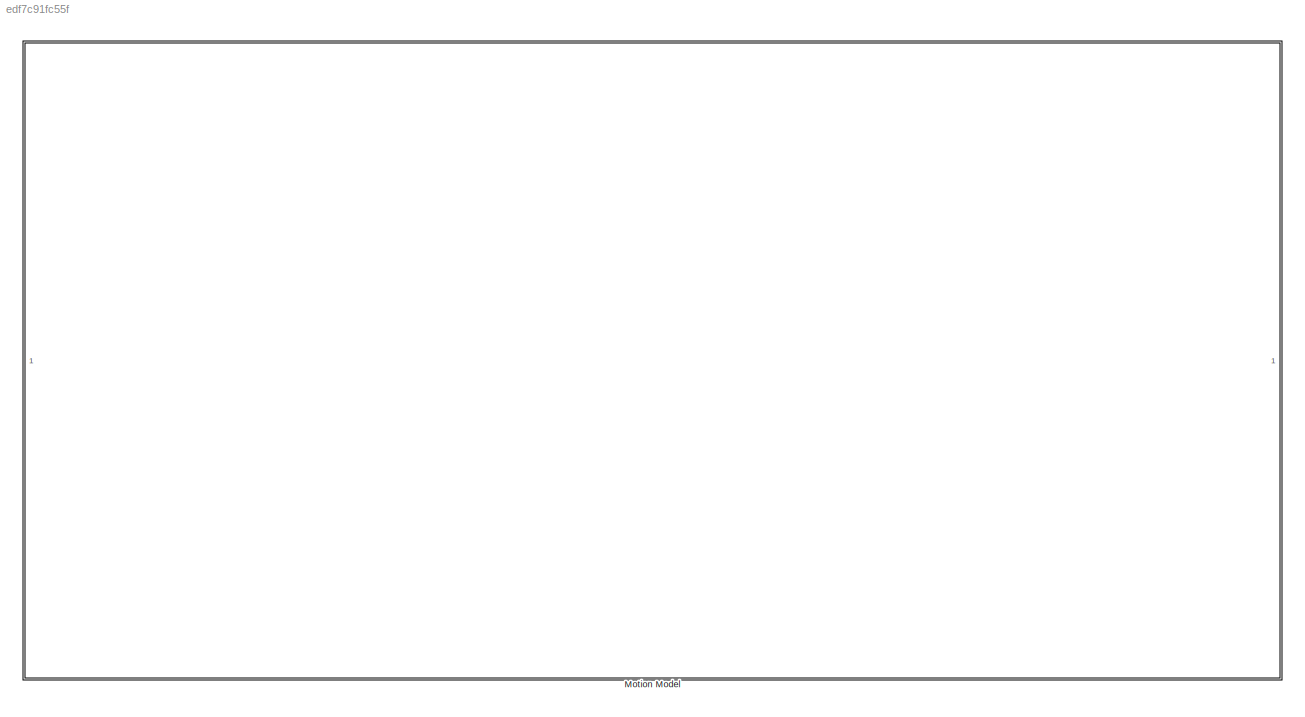
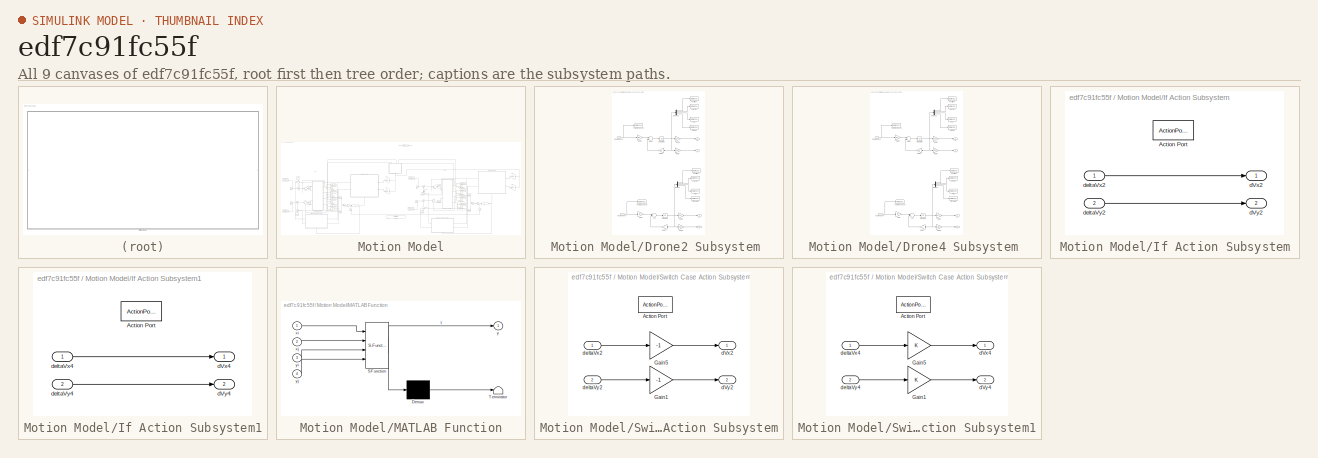
[diagram: thumbnail index - all 9 canvases of the model, root first then tree order]
MODEL slx_edf7c91fc55f
KIND model
CONFIG AbsTol = auto
CONFIG EnableMultiTasking = off
CONFIG FixedStep = auto
CONFIG MaxStep = auto
CONFIG MinStep = auto
CONFIG RelTol = 1e-3
CONFIG SampleTimeConstraint = Unconstrained
CONFIG Solver = VariableStepAuto
CONFIG SolverName = VariableStepAuto
CONFIG StartTime = tStart 
CONFIG StopTime = tFinal
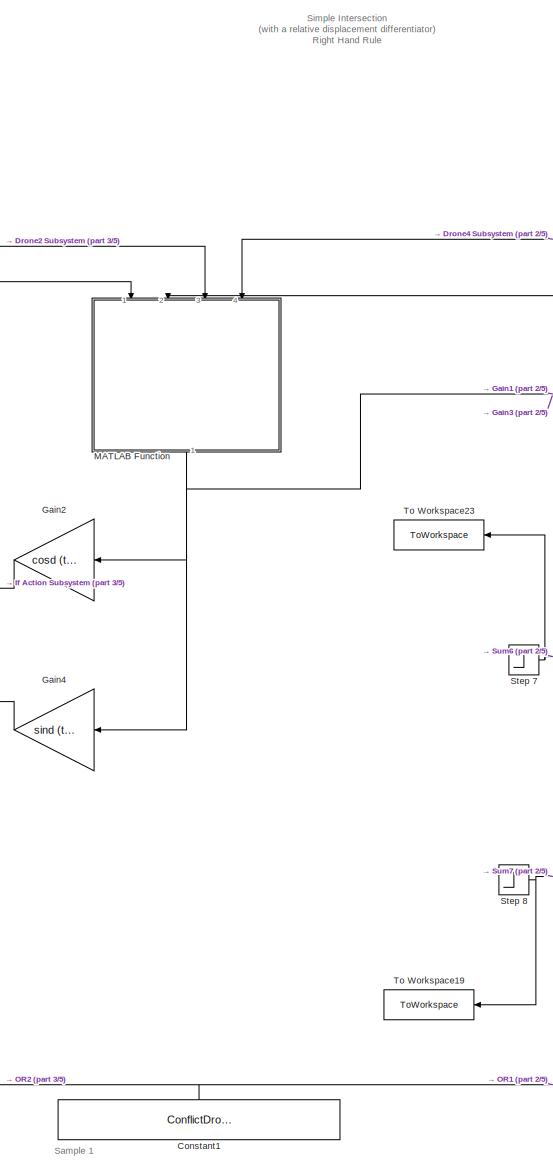
[diagram: Motion Model - part 1/5, center side, full height]
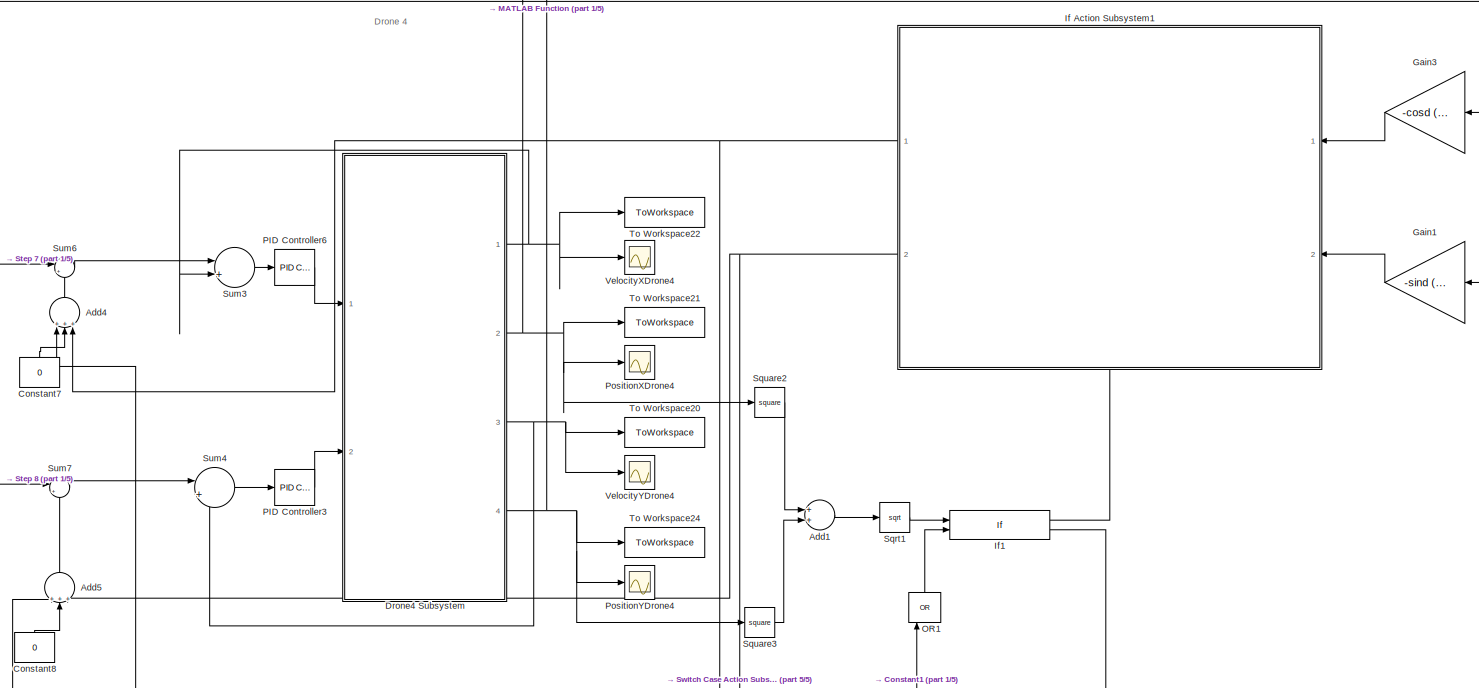
[diagram: Motion Model - part 2/5, middle right region]
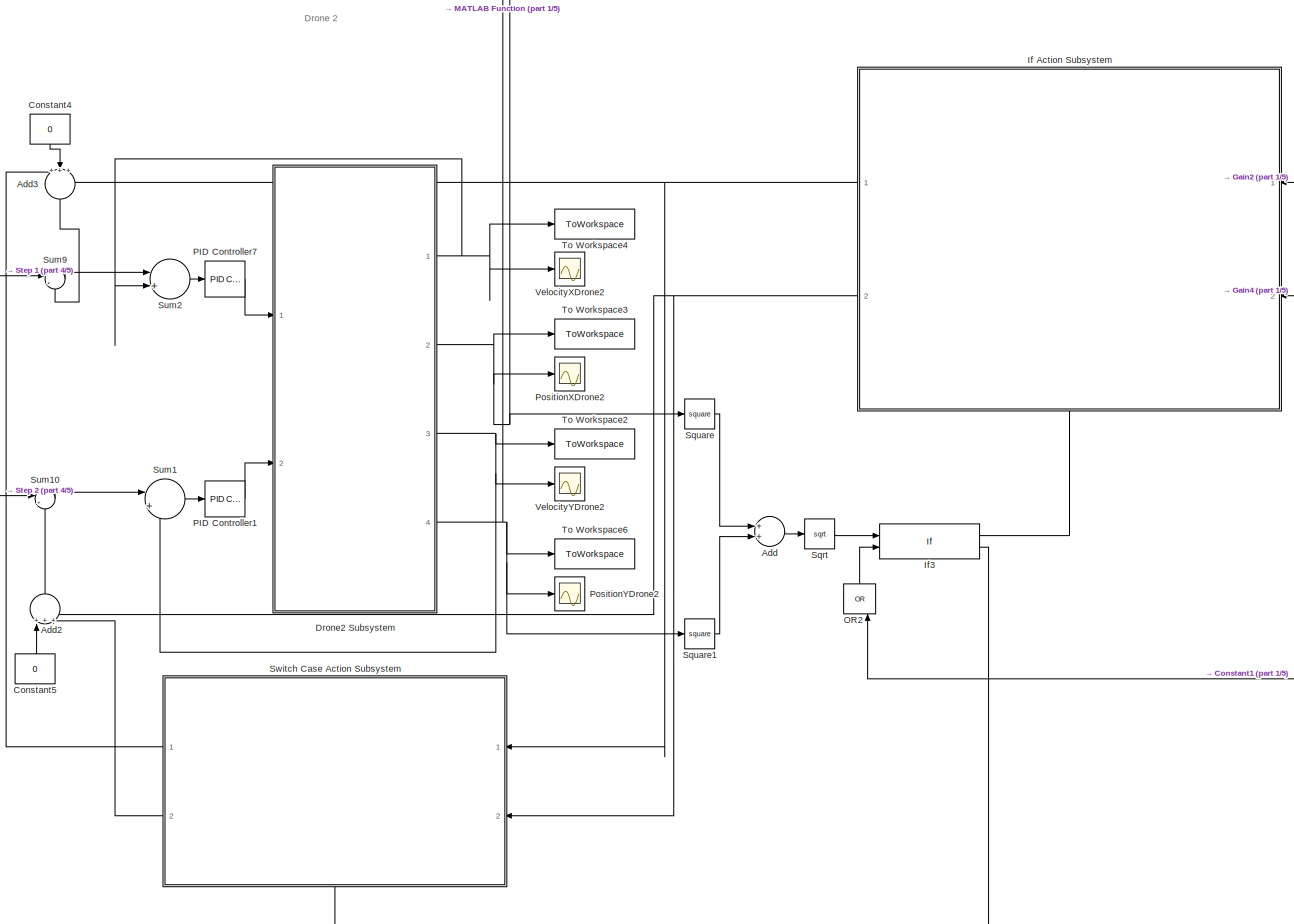
[diagram: Motion Model - part 3/5, middle left region]
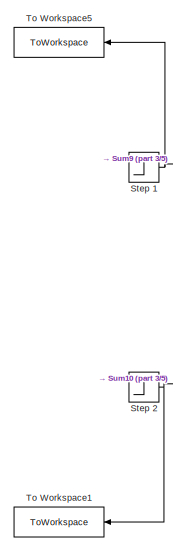
[diagram: Motion Model - part 4/5, middle left region]
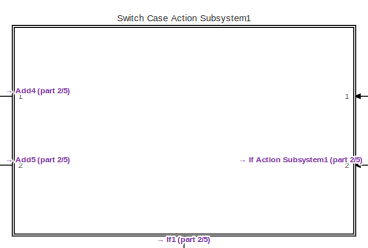
[diagram: Motion Model - part 5/5, bottom right region]
BLOCK [SubSystem] Motion Model
  Ports = []
  RequestExecContextInheritance = off
BLOCK [Sum] Motion Model/Add
  InputSameDT = off
  OutDataTypeStr = Inherit: Inherit via internal rule
  Ports = [2, 1]
  SaturateOnIntegerOverflow = off
BLOCK [Sum] Motion Model/Add1
  InputSameDT = off
  OutDataTypeStr = Inherit: Inherit via internal rule
  Ports = [2, 1]
  SaturateOnIntegerOverflow = off
BLOCK [Sum] Motion Model/Add2
  InputSameDT = off
  Inputs = +++
  OutDataTypeStr = Inherit: Inherit via internal rule
  Ports = [3, 1]
  SaturateOnIntegerOverflow = off
BLOCK [Sum] Motion Model/Add3
  InputSameDT = off
  Inputs = +++
  OutDataTypeStr = Inherit: Inherit via internal rule
  Ports = [3, 1]
  SaturateOnIntegerOverflow = off
BLOCK [Sum] Motion Model/Add4
  InputSameDT = off
  Inputs = +++
  OutDataTypeStr = Inherit: Inherit via internal rule
  Ports = [3, 1]
  SaturateOnIntegerOverflow = off
BLOCK [Sum] Motion Model/Add5
  InputSameDT = off
  Inputs = +++
  OutDataTypeStr = Inherit: Inherit via internal rule
  Ports = [3, 1]
  SaturateOnIntegerOverflow = off
BLOCK [Constant] Motion Model/Constant1
  Value = ConflictDrone2andDrone4
BLOCK [Constant] Motion Model/Constant4
  Value = 0
BLOCK [Constant] Motion Model/Constant5
  Value = 0
BLOCK [Constant] Motion Model/Constant7
  Value = 0
BLOCK [Constant] Motion Model/Constant8
  Value = 0
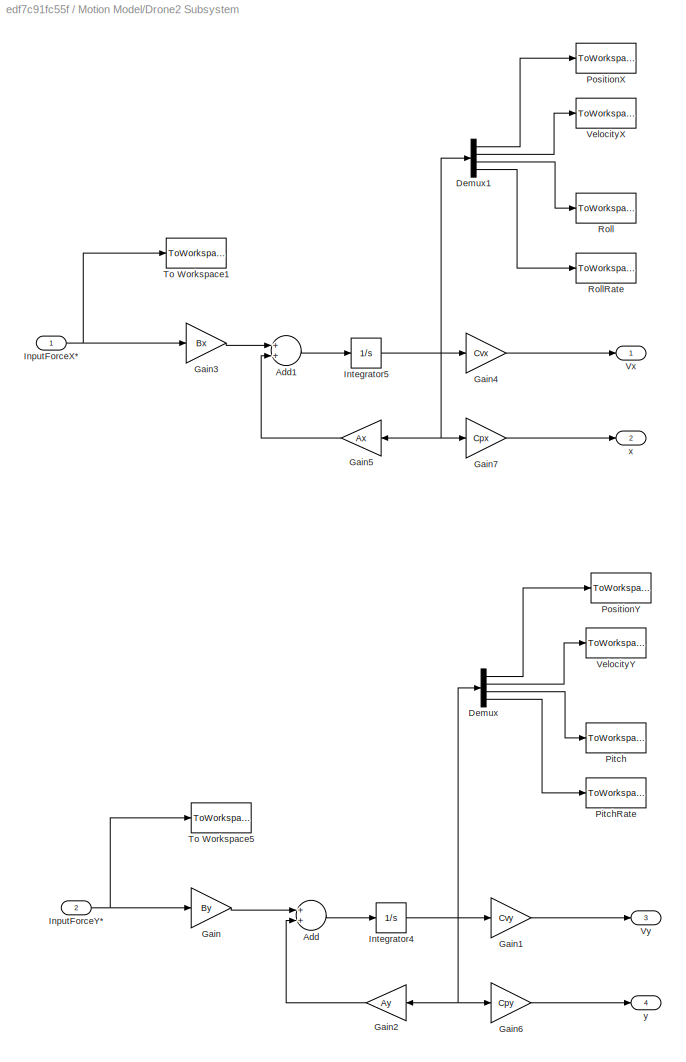
BLOCK [SubSystem] Motion Model/Drone2 Subsystem 
  Ports = [2, 4]
  RequestExecContextInheritance = off
BLOCK [Sum] Motion Model/Drone2 Subsystem /Add
  InputSameDT = off
  OutDataTypeStr = Inherit: Inherit via internal rule
  Ports = [2, 1]
  SaturateOnIntegerOverflow = off
BLOCK [Sum] Motion Model/Drone2 Subsystem /Add1
  InputSameDT = off
  OutDataTypeStr = Inherit: Inherit via internal rule
  Ports = [2, 1]
  SaturateOnIntegerOverflow = off
BLOCK [Demux] Motion Model/Drone2 Subsystem /Demux
  DisplayOption = bar
  Ports = [1, 4]
BLOCK [Demux] Motion Model/Drone2 Subsystem /Demux1
  DisplayOption = bar
  Ports = [1, 4]
BLOCK [Gain] Motion Model/Drone2 Subsystem /Gain
  Gain = By
  Multiplication = Matrix(K*u)
  OutDataTypeStr = Inherit: Inherit via internal rule
  ParamDataTypeStr = Inherit: Inherit via internal rule
  SaturateOnIntegerOverflow = off
BLOCK [Gain] Motion Model/Drone2 Subsystem /Gain1
  Gain = Cvy
  Multiplication = Matrix(K*u)
  OutDataTypeStr = Inherit: Inherit via internal rule
  ParamDataTypeStr = Inherit: Inherit via internal rule
  SaturateOnIntegerOverflow = off
BLOCK [Gain] Motion Model/Drone2 Subsystem /Gain2
  Gain = Ay
  Multiplication = Matrix(K*u)
  OutDataTypeStr = Inherit: Inherit via internal rule
  ParamDataTypeStr = Inherit: Inherit via internal rule
  SaturateOnIntegerOverflow = off
BLOCK [Gain] Motion Model/Drone2 Subsystem /Gain3
  Gain = Bx
  Multiplication = Matrix(K*u)
  OutDataTypeStr = Inherit: Inherit via internal rule
  ParamDataTypeStr = Inherit: Inherit via internal rule
  SaturateOnIntegerOverflow = off
BLOCK [Gain] Motion Model/Drone2 Subsystem /Gain4
  Gain = Cvx
  Multiplication = Matrix(K*u)
  OutDataTypeStr = Inherit: Inherit via internal rule
  ParamDataTypeStr = Inherit: Inherit via internal rule
  SaturateOnIntegerOverflow = off
BLOCK [Gain] Motion Model/Drone2 Subsystem /Gain5
  Gain = Ax
  Multiplication = Matrix(K*u)
  OutDataTypeStr = Inherit: Inherit via internal rule
  ParamDataTypeStr = Inherit: Inherit via internal rule
  SaturateOnIntegerOverflow = off
BLOCK [Gain] Motion Model/Drone2 Subsystem /Gain6
  Gain = Cpy
  Multiplication = Matrix(K*u)
  OutDataTypeStr = Inherit: Inherit via internal rule
  ParamDataTypeStr = Inherit: Inherit via internal rule
  SaturateOnIntegerOverflow = off
BLOCK [Gain] Motion Model/Drone2 Subsystem /Gain7
  Gain = Cpx
  Multiplication = Matrix(K*u)
  OutDataTypeStr = Inherit: Inherit via internal rule
  ParamDataTypeStr = Inherit: Inherit via internal rule
  SaturateOnIntegerOverflow = off
BLOCK [Inport] Motion Model/Drone2 Subsystem /InputForceX*
  IconDisplay = Port number
BLOCK [Inport] Motion Model/Drone2 Subsystem /InputForceY* 
  IconDisplay = Port number
  Port = 2
BLOCK [Integrator] Motion Model/Drone2 Subsystem /Integrator4
  InitialCondition = Y20
  Ports = [1, 1]
BLOCK [Integrator] Motion Model/Drone2 Subsystem /Integrator5
  InitialCondition = X20
  Ports = [1, 1]
BLOCK [ToWorkspace] Motion Model/Drone2 Subsystem /Pitch
  FixptAsFi = on
  MaxDataPoints = inf
  Ports = [1]
  SampleTime = -1
  Save2DSignal = 3-D array (concatenate along third dimension)
  VariableName = Theta2
BLOCK [ToWorkspace] Motion Model/Drone2 Subsystem /PitchRate
  FixptAsFi = on
  MaxDataPoints = inf
  Ports = [1]
  SampleTime = -1
  Save2DSignal = 3-D array (concatenate along third dimension)
  VariableName = ThetaDot2
BLOCK [ToWorkspace] Motion Model/Drone2 Subsystem /PositionX
  FixptAsFi = on
  MaxDataPoints = inf
  Ports = [1]
  SampleTime = -1
  Save2DSignal = 3-D array (concatenate along third dimension)
  VariableName = x2
BLOCK [ToWorkspace] Motion Model/Drone2 Subsystem /PositionY
  FixptAsFi = on
  MaxDataPoints = inf
  Ports = [1]
  SampleTime = -1
  Save2DSignal = 3-D array (concatenate along third dimension)
  VariableName = y2
BLOCK [ToWorkspace] Motion Model/Drone2 Subsystem /Roll
  FixptAsFi = on
  MaxDataPoints = inf
  Ports = [1]
  SampleTime = -1
  Save2DSignal = 3-D array (concatenate along third dimension)
  VariableName = Psi2
BLOCK [ToWorkspace] Motion Model/Drone2 Subsystem /RollRate
  FixptAsFi = on
  MaxDataPoints = inf
  Ports = [1]
  SampleTime = -1
  Save2DSignal = 3-D array (concatenate along third dimension)
  VariableName = PsiDot2
BLOCK [ToWorkspace] Motion Model/Drone2 Subsystem /To Workspace1
  FixptAsFi = on
  MaxDataPoints = inf
  Ports = [1]
  SampleTime = -1
  Save2DSignal = 3-D array (concatenate along third dimension)
  VariableName = RollReference2
BLOCK [ToWorkspace] Motion Model/Drone2 Subsystem /To Workspace5
  FixptAsFi = on
  MaxDataPoints = inf
  Ports = [1]
  SampleTime = -1
  Save2DSignal = 3-D array (concatenate along third dimension)
  VariableName = PitchReference2
BLOCK [ToWorkspace] Motion Model/Drone2 Subsystem /VelocityX
  FixptAsFi = on
  MaxDataPoints = inf
  Ports = [1]
  SampleTime = -1
  Save2DSignal = 3-D array (concatenate along third dimension)
  VariableName = vx2
BLOCK [ToWorkspace] Motion Model/Drone2 Subsystem /VelocityY
  FixptAsFi = on
  MaxDataPoints = inf
  Ports = [1]
  SampleTime = -1
  Save2DSignal = 3-D array (concatenate along third dimension)
  VariableName = vy2
BLOCK [Outport] Motion Model/Drone2 Subsystem /Vx
  IconDisplay = Port number
BLOCK [Outport] Motion Model/Drone2 Subsystem /Vy
  IconDisplay = Port number
  Port = 3
BLOCK [Outport] Motion Model/Drone2 Subsystem /x
  IconDisplay = Port number
  Port = 2
BLOCK [Outport] Motion Model/Drone2 Subsystem /y
  IconDisplay = Port number
  Port = 4
BLOCK [SubSystem] Motion Model/Drone4 Subsystem 
  Ports = [2, 4]
  RequestExecContextInheritance = off
BLOCK [Sum] Motion Model/Drone4 Subsystem /Add
  InputSameDT = off
  OutDataTypeStr = Inherit: Inherit via internal rule
  Ports = [2, 1]
  SaturateOnIntegerOverflow = off
BLOCK [Sum] Motion Model/Drone4 Subsystem /Add1
  InputSameDT = off
  OutDataTypeStr = Inherit: Inherit via internal rule
  Ports = [2, 1]
  SaturateOnIntegerOverflow = off
BLOCK [Demux] Motion Model/Drone4 Subsystem /Demux
  DisplayOption = bar
  Ports = [1, 4]
BLOCK [Demux] Motion Model/Drone4 Subsystem /Demux1
  DisplayOption = bar
  Ports = [1, 4]
BLOCK [Gain] Motion Model/Drone4 Subsystem /Gain
  Gain = By
  Multiplication = Matrix(K*u)
  OutDataTypeStr = Inherit: Inherit via internal rule
  ParamDataTypeStr = Inherit: Inherit via internal rule
  SaturateOnIntegerOverflow = off
BLOCK [Gain] Motion Model/Drone4 Subsystem /Gain1
  Gain = Cvy
  Multiplication = Matrix(K*u)
  OutDataTypeStr = Inherit: Inherit via internal rule
  ParamDataTypeStr = Inherit: Inherit via internal rule
  SaturateOnIntegerOverflow = off
BLOCK [Gain] Motion Model/Drone4 Subsystem /Gain2
  Gain = Ay
  Multiplication = Matrix(K*u)
  OutDataTypeStr = Inherit: Inherit via internal rule
  ParamDataTypeStr = Inherit: Inherit via internal rule
  SaturateOnIntegerOverflow = off
BLOCK [Gain] Motion Model/Drone4 Subsystem /Gain3
  Gain = Bx
  Multiplication = Matrix(K*u)
  OutDataTypeStr = Inherit: Inherit via internal rule
  ParamDataTypeStr = Inherit: Inherit via internal rule
  SaturateOnIntegerOverflow = off
BLOCK [Gain] Motion Model/Drone4 Subsystem /Gain4
  Gain = Cvx
  Multiplication = Matrix(K*u)
  OutDataTypeStr = Inherit: Inherit via internal rule
  ParamDataTypeStr = Inherit: Inherit via internal rule
  SaturateOnIntegerOverflow = off
BLOCK [Gain] Motion Model/Drone4 Subsystem /Gain5
  Gain = Ax
  Multiplication = Matrix(K*u)
  OutDataTypeStr = Inherit: Inherit via internal rule
  ParamDataTypeStr = Inherit: Inherit via internal rule
  SaturateOnIntegerOverflow = off
BLOCK [Gain] Motion Model/Drone4 Subsystem /Gain6
  Gain = Cpy
  Multiplication = Matrix(K*u)
  OutDataTypeStr = Inherit: Inherit via internal rule
  ParamDataTypeStr = Inherit: Inherit via internal rule
  SaturateOnIntegerOverflow = off
BLOCK [Gain] Motion Model/Drone4 Subsystem /Gain7
  Gain = Cpx
  Multiplication = Matrix(K*u)
  OutDataTypeStr = Inherit: Inherit via internal rule
  ParamDataTypeStr = Inherit: Inherit via internal rule
  SaturateOnIntegerOverflow = off
BLOCK [Inport] Motion Model/Drone4 Subsystem /InputForceX*
  IconDisplay = Port number
BLOCK [Inport] Motion Model/Drone4 Subsystem /InputForceY* 
  IconDisplay = Port number
  Port = 2
BLOCK [Integrator] Motion Model/Drone4 Subsystem /Integrator4
  InitialCondition = Y40
  Ports = [1, 1]
BLOCK [Integrator] Motion Model/Drone4 Subsystem /Integrator5
  InitialCondition = X40
  Ports = [1, 1]
BLOCK [ToWorkspace] Motion Model/Drone4 Subsystem /Pitch
  FixptAsFi = on
  MaxDataPoints = inf
  Ports = [1]
  SampleTime = -1
  Save2DSignal = 3-D array (concatenate along third dimension)
  VariableName = Theta
BLOCK [ToWorkspace] Motion Model/Drone4 Subsystem /PitchRate
  FixptAsFi = on
  MaxDataPoints = inf
  Ports = [1]
  SampleTime = -1
  Save2DSignal = 3-D array (concatenate along third dimension)
  VariableName = ThetaDot
BLOCK [ToWorkspace] Motion Model/Drone4 Subsystem /PositionX
  FixptAsFi = on
  MaxDataPoints = inf
  Ports = [1]
  SampleTime = -1
  Save2DSignal = 3-D array (concatenate along third dimension)
  VariableName = x
BLOCK [ToWorkspace] Motion Model/Drone4 Subsystem /PositionY
  FixptAsFi = on
  MaxDataPoints = inf
  Ports = [1]
  SampleTime = -1
  Save2DSignal = 3-D array (concatenate along third dimension)
  VariableName = y
BLOCK [ToWorkspace] Motion Model/Drone4 Subsystem /Roll
  FixptAsFi = on
  MaxDataPoints = inf
  Ports = [1]
  SampleTime = -1
  Save2DSignal = 3-D array (concatenate along third dimension)
  VariableName = Psi
BLOCK [ToWorkspace] Motion Model/Drone4 Subsystem /RollRate
  FixptAsFi = on
  MaxDataPoints = inf
  Ports = [1]
  SampleTime = -1
  Save2DSignal = 3-D array (concatenate along third dimension)
  VariableName = PsiDot
BLOCK [ToWorkspace] Motion Model/Drone4 Subsystem /To Workspace1
  FixptAsFi = on
  MaxDataPoints = inf
  Ports = [1]
  SampleTime = -1
  Save2DSignal = 3-D array (concatenate along third dimension)
  VariableName = RollReference
BLOCK [ToWorkspace] Motion Model/Drone4 Subsystem /To Workspace5
  FixptAsFi = on
  MaxDataPoints = inf
  Ports = [1]
  SampleTime = -1
  Save2DSignal = 3-D array (concatenate along third dimension)
  VariableName = PitchReference
BLOCK [ToWorkspace] Motion Model/Drone4 Subsystem /VelocityX
  FixptAsFi = on
  MaxDataPoints = inf
  Ports = [1]
  SampleTime = -1
  Save2DSignal = 3-D array (concatenate along third dimension)
  VariableName = vx
BLOCK [ToWorkspace] Motion Model/Drone4 Subsystem /VelocityY
  FixptAsFi = on
  MaxDataPoints = inf
  Ports = [1]
  SampleTime = -1
  Save2DSignal = 3-D array (concatenate along third dimension)
  VariableName = vy
BLOCK [Outport] Motion Model/Drone4 Subsystem /Vx
  IconDisplay = Port number
BLOCK [Outport] Motion Model/Drone4 Subsystem /Vy
  IconDisplay = Port number
  Port = 3
BLOCK [Outport] Motion Model/Drone4 Subsystem /x
  IconDisplay = Port number
  Port = 2
BLOCK [Outport] Motion Model/Drone4 Subsystem /y
  IconDisplay = Port number
  Port = 4
BLOCK [Gain] Motion Model/Gain1
  Gain = -sind (theta4)
  OutDataTypeStr = Inherit: Inherit via internal rule
  ParamDataTypeStr = Inherit: Inherit via internal rule
  SaturateOnIntegerOverflow = off
BLOCK [Gain] Motion Model/Gain2
  Gain = cosd (theta2)
  OutDataTypeStr = Inherit: Inherit via internal rule
  ParamDataTypeStr = Inherit: Inherit via internal rule
  SaturateOnIntegerOverflow = off
BLOCK [Gain] Motion Model/Gain3
  Gain = -cosd (theta4)
  OutDataTypeStr = Inherit: Inherit via internal rule
  ParamDataTypeStr = Inherit: Inherit via internal rule
  SaturateOnIntegerOverflow = off
BLOCK [Gain] Motion Model/Gain4
  Gain = sind (theta2)
  OutDataTypeStr = Inherit: Inherit via internal rule
  ParamDataTypeStr = Inherit: Inherit via internal rule
  SaturateOnIntegerOverflow = off
BLOCK [SubSystem] Motion Model/If Action Subsystem
  Ports = [2, 2, 0, 0, 0, 0, 0, 1]
  RequestExecContextInheritance = off
  TreatAsAtomicUnit = on
BLOCK [ActionPort] Motion Model/If Action Subsystem/Action Port
  ActionType = then
BLOCK [Outport] Motion Model/If Action Subsystem/dVx2
  IconDisplay = Port number
BLOCK [Outport] Motion Model/If Action Subsystem/dVy2
  IconDisplay = Port number
  Port = 2
BLOCK [Inport] Motion Model/If Action Subsystem/deltaVx2
  IconDisplay = Port number
BLOCK [Inport] Motion Model/If Action Subsystem/deltaVy2
  IconDisplay = Port number
  Port = 2
BLOCK [SubSystem] Motion Model/If Action Subsystem1
  Ports = [2, 2, 0, 0, 0, 0, 0, 1]
  RequestExecContextInheritance = off
  TreatAsAtomicUnit = on
BLOCK [ActionPort] Motion Model/If Action Subsystem1/Action Port
  ActionType = then
BLOCK [Outport] Motion Model/If Action Subsystem1/dVx4
  IconDisplay = Port number
BLOCK [Outport] Motion Model/If Action Subsystem1/dVy4
  IconDisplay = Port number
  Port = 2
BLOCK [Inport] Motion Model/If Action Subsystem1/deltaVx4
  IconDisplay = Port number
BLOCK [Inport] Motion Model/If Action Subsystem1/deltaVy4
  IconDisplay = Port number
  Port = 2
BLOCK [If] Motion Model/If1
  ElseIfExpressions = (u1 > R)&(u2 == 1)
  IfExpression = (u1 <= R)&(u2 == 1)
  NumInputs = 2
  Ports = [2, 2]
  ShowElse = off
BLOCK [If] Motion Model/If3
  ElseIfExpressions = (u1 > R)&(u2 == 1)
  IfExpression = (u1 <= R)&(u2 == 1)
  NumInputs = 2
  Ports = [2, 2]
  ShowElse = off
BLOCK [SubSystem] Motion Model/MATLAB Function
  ErrorFcn = Stateflow.Translate.translate
  PermitHierarchicalResolution = ExplicitOnly
  Ports = [4, 1]
  RequestExecContextInheritance = off
  SFBlockType = MATLAB Function
  TreatAsAtomicUnit = on
BLOCK [Demux] Motion Model/MATLAB Function/ Demux 
  Outputs = 1
  Ports = [1, 1]
BLOCK [S-Function] Motion Model/MATLAB Function/ SFunction 
  EnableBusSupport = on
  FunctionName = sf_sfun
  PortCounts = [4 2]
  Ports = [4, 2]
  SFcnIsStateOwnerBlock = off
  SFunctionDeploymentMode = off
  Tag = Stateflow S-Function RDD 2
BLOCK [Terminator] Motion Model/MATLAB Function/ Terminator 
BLOCK [Inport] Motion Model/MATLAB Function/xi
  IconDisplay = Port number
BLOCK [Inport] Motion Model/MATLAB Function/xj
  IconDisplay = Port number
  Port = 2
BLOCK [Outport] Motion Model/MATLAB Function/y
  IconDisplay = Port number
BLOCK [Inport] Motion Model/MATLAB Function/yi
  IconDisplay = Port number
  Port = 3
BLOCK [Inport] Motion Model/MATLAB Function/yj
  IconDisplay = Port number
  Port = 4
BLOCK [Logic] Motion Model/OR1
  AllPortsSameDT = off
  IconShape = distinctive
  Inputs = 3
  Operator = OR
  OutDataTypeStr = 'double'
  Ports = [3, 1]
BLOCK [Logic] Motion Model/OR2
  AllPortsSameDT = off
  IconShape = distinctive
  Inputs = 3
  Operator = OR
  OutDataTypeStr = 'double'
  Ports = [3, 1]
BLOCK [Reference] Motion Model/PID Controller1  REF=simulink/Continuous/PID Controller
  Ports = [1, 1]
  SourceBlock = simulink/Continuous/PID Controller
  SourceProductBaseCode = SL
  SourceProductName = Simulink
  SourceType = PID 1dof
BLOCK [Reference] Motion Model/PID Controller3  REF=simulink/Continuous/PID Controller
  Ports = [1, 1]
  SourceBlock = simulink/Continuous/PID Controller
  SourceProductBaseCode = SL
  SourceProductName = Simulink
  SourceType = PID 1dof
BLOCK [Reference] Motion Model/PID Controller6  REF=simulink/Continuous/PID Controller
  Ports = [1, 1]
  SourceBlock = simulink/Continuous/PID Controller
  SourceProductBaseCode = SL
  SourceProductName = Simulink
  SourceType = PID 1dof
BLOCK [Reference] Motion Model/PID Controller7  REF=simulink/Continuous/PID Controller
  Ports = [1, 1]
  SourceBlock = simulink/Continuous/PID Controller
  SourceProductBaseCode = SL
  SourceProductName = Simulink
  SourceType = PID 1dof
BLOCK [Scope] Motion Model/PositionXDrone2
  Floating = off
  NumInputPorts = 1
  Ports = [1]
  ScopeSpecificationString = Simulink.scopes.TimeScopeBlockCfg('CurrentConfiguration', extmgr.ConfigurationSet(extmgr.Configuration('Core','General UI',true),extmgr.Configuration('Core','Source UI',true),extmgr.Configuration('Sources','WiredSimulink',true,'DataLoggingVariableName','ScopeData1'),extmgr.Configuration('Visuals','Time Domain',true,'SerializedDisplays',{struct('MinYLimReal','-13.93778','MaxYLimReal','12.65975','YL...<+1455ch>
BLOCK [Scope] Motion Model/PositionXDrone4
  Floating = off
  NumInputPorts = 1
  Ports = [1]
  ScopeSpecificationString = Simulink.scopes.TimeScopeBlockCfg('CurrentConfiguration', extmgr.ConfigurationSet(extmgr.Configuration('Core','General UI',true),extmgr.Configuration('Core','Source UI',true),extmgr.Configuration('Sources','WiredSimulink',true,'DataLoggingVariableName','ScopeData2'),extmgr.Configuration('Visuals','Time Domain',true,'SerializedDisplays',{struct('MinYLimReal','-23.95767','MaxYLimReal','115.61905','Y...<+1459ch>
BLOCK [Scope] Motion Model/PositionYDrone2
  Floating = off
  NumInputPorts = 1
  Ports = [1]
  ScopeSpecificationString = Simulink.scopes.TimeScopeBlockCfg('CurrentConfiguration', extmgr.ConfigurationSet(extmgr.Configuration('Core','General UI',true),extmgr.Configuration('Core','Source UI',true),extmgr.Configuration('Sources','WiredSimulink',true,'DataLoggingVariableName','ScopeData3'),extmgr.Configuration('Visuals','Time Domain',true,'SerializedDisplays',{struct('MinYLimReal','-12488.44039','MaxYLimReal','112495.937...<+1759ch>
BLOCK [Scope] Motion Model/PositionYDrone4
  Floating = off
  NumInputPorts = 1
  Ports = [1]
  ScopeSpecificationString = Simulink.scopes.TimeScopeBlockCfg('CurrentConfiguration', extmgr.ConfigurationSet(extmgr.Configuration('Core','General UI',true),extmgr.Configuration('Core','Source UI',true),extmgr.Configuration('Sources','WiredSimulink',true,'DataLoggingVariableName','ScopeData4'),extmgr.Configuration('Visuals','Time Domain',true,'SerializedDisplays',{struct('MinYLimReal','-115.61905','MaxYLimReal','23.95767','Y...<+1461ch>
BLOCK [Sqrt] Motion Model/Sqrt
BLOCK [Sqrt] Motion Model/Sqrt1
BLOCK [Math] Motion Model/Square
  Operator = square
  Ports = [1, 1]
BLOCK [Math] Motion Model/Square1
  Operator = square
  Ports = [1, 1]
BLOCK [Math] Motion Model/Square2
  Operator = square
  Ports = [1, 1]
BLOCK [Math] Motion Model/Square3
  Operator = square
  Ports = [1, 1]
BLOCK [Step] Motion Model/Step 1
  After = VelocityStarX2
  SampleTime = 0
  Time = 0
BLOCK [Step] Motion Model/Step 2
  After = VelocityStarY2
  SampleTime = 0
  Time = 0
BLOCK [Step] Motion Model/Step 7
  After = VelocityStarX4
  SampleTime = 0
  Time = 0
BLOCK [Step] Motion Model/Step 8
  After = VelocityStarY4
  SampleTime = 0
  Time = 0
BLOCK [Sum] Motion Model/Sum1
  IconShape = round
  InputSameDT = off
  Inputs = |+-
  OutDataTypeStr = Inherit: Inherit via internal rule
  Ports = [2, 1]
  SaturateOnIntegerOverflow = off
BLOCK [Sum] Motion Model/Sum10
  IconShape = round
  InputSameDT = off
  Inputs = |+-
  OutDataTypeStr = Inherit: Inherit via internal rule
  Ports = [2, 1]
  SaturateOnIntegerOverflow = off
BLOCK [Sum] Motion Model/Sum2
  IconShape = round
  InputSameDT = off
  Inputs = |+-
  OutDataTypeStr = Inherit: Inherit via internal rule
  Ports = [2, 1]
  SaturateOnIntegerOverflow = off
BLOCK [Sum] Motion Model/Sum3
  IconShape = round
  InputSameDT = off
  Inputs = |+-
  OutDataTypeStr = Inherit: Inherit via internal rule
  Ports = [2, 1]
  SaturateOnIntegerOverflow = off
BLOCK [Sum] Motion Model/Sum4
  IconShape = round
  InputSameDT = off
  Inputs = |+-
  OutDataTypeStr = Inherit: Inherit via internal rule
  Ports = [2, 1]
  SaturateOnIntegerOverflow = off
BLOCK [Sum] Motion Model/Sum6
  IconShape = round
  InputSameDT = off
  Inputs = |+-
  OutDataTypeStr = Inherit: Inherit via internal rule
  Ports = [2, 1]
  SaturateOnIntegerOverflow = off
BLOCK [Sum] Motion Model/Sum7
  IconShape = round
  InputSameDT = off
  Inputs = |+-
  OutDataTypeStr = Inherit: Inherit via internal rule
  Ports = [2, 1]
  SaturateOnIntegerOverflow = off
BLOCK [Sum] Motion Model/Sum9
  IconShape = round
  InputSameDT = off
  Inputs = |+-
  OutDataTypeStr = Inherit: Inherit via internal rule
  Ports = [2, 1]
  SaturateOnIntegerOverflow = off
BLOCK [SubSystem] Motion Model/Switch Case Action Subsystem
  Ports = [2, 2, 0, 0, 0, 0, 0, 1]
  RequestExecContextInheritance = off
  TreatAsAtomicUnit = on
BLOCK [ActionPort] Motion Model/Switch Case Action Subsystem/Action Port
  ActionType = elseif
BLOCK [Gain] Motion Model/Switch Case Action Subsystem/Gain1
  Gain = -1
  OutDataTypeStr = Inherit: Inherit via internal rule
  ParamDataTypeStr = Inherit: Inherit via internal rule
  SaturateOnIntegerOverflow = off
BLOCK [Gain] Motion Model/Switch Case Action Subsystem/Gain5
  Gain = -1
  OutDataTypeStr = Inherit: Inherit via internal rule
  ParamDataTypeStr = Inherit: Inherit via internal rule
  SaturateOnIntegerOverflow = off
BLOCK [Outport] Motion Model/Switch Case Action Subsystem/dVx2
  IconDisplay = Port number
BLOCK [Outport] Motion Model/Switch Case Action Subsystem/dVy2
  IconDisplay = Port number
  Port = 2
BLOCK [Inport] Motion Model/Switch Case Action Subsystem/deltaVx2
  IconDisplay = Port number
BLOCK [Inport] Motion Model/Switch Case Action Subsystem/deltaVy2
  IconDisplay = Port number
  Port = 2
BLOCK [SubSystem] Motion Model/Switch Case Action Subsystem1
  Ports = [2, 2, 0, 0, 0, 0, 0, 1]
  RequestExecContextInheritance = off
  TreatAsAtomicUnit = on
BLOCK [ActionPort] Motion Model/Switch Case Action Subsystem1/Action Port
  ActionType = elseif
BLOCK [Gain] Motion Model/Switch Case Action Subsystem1/Gain1
  OutDataTypeStr = Inherit: Inherit via internal rule
  ParamDataTypeStr = Inherit: Inherit via internal rule
  SaturateOnIntegerOverflow = off
BLOCK [Gain] Motion Model/Switch Case Action Subsystem1/Gain5
  OutDataTypeStr = Inherit: Inherit via internal rule
  ParamDataTypeStr = Inherit: Inherit via internal rule
  SaturateOnIntegerOverflow = off
BLOCK [Outport] Motion Model/Switch Case Action Subsystem1/dVx4
  IconDisplay = Port number
BLOCK [Outport] Motion Model/Switch Case Action Subsystem1/dVy4
  IconDisplay = Port number
  Port = 2
BLOCK [Inport] Motion Model/Switch Case Action Subsystem1/deltaVx4
  IconDisplay = Port number
BLOCK [Inport] Motion Model/Switch Case Action Subsystem1/deltaVy4
  IconDisplay = Port number
  Port = 2
BLOCK [ToWorkspace] Motion Model/To Workspace1
  FixptAsFi = on
  MaxDataPoints = inf
  Ports = [1]
  SampleTime = -1
  Save2DSignal = 3-D array (concatenate along third dimension)
  VariableName = VelocityStarY2
BLOCK [ToWorkspace] Motion Model/To Workspace19
  FixptAsFi = on
  MaxDataPoints = inf
  Ports = [1]
  SampleTime = -1
  Save2DSignal = 3-D array (concatenate along third dimension)
  VariableName = VelocityStarY4
BLOCK [ToWorkspace] Motion Model/To Workspace2
  FixptAsFi = on
  MaxDataPoints = inf
  Ports = [1]
  SampleTime = -1
  Save2DSignal = 3-D array (concatenate along third dimension)
  VariableName = VelocityYDrone2
BLOCK [ToWorkspace] Motion Model/To Workspace20
  FixptAsFi = on
  MaxDataPoints = inf
  Ports = [1]
  SampleTime = -1
  Save2DSignal = 3-D array (concatenate along third dimension)
  VariableName = VelocityYDrone4
BLOCK [ToWorkspace] Motion Model/To Workspace21
  FixptAsFi = on
  MaxDataPoints = inf
  Ports = [1]
  SampleTime = -1
  Save2DSignal = 3-D array (concatenate along third dimension)
  VariableName = PositionXDrone4
BLOCK [ToWorkspace] Motion Model/To Workspace22
  FixptAsFi = on
  MaxDataPoints = inf
  Ports = [1]
  SampleTime = -1
  Save2DSignal = 3-D array (concatenate along third dimension)
  VariableName = VelocityXDrone4
BLOCK [ToWorkspace] Motion Model/To Workspace23
  FixptAsFi = on
  MaxDataPoints = inf
  Ports = [1]
  SampleTime = -1
  Save2DSignal = 3-D array (concatenate along third dimension)
  VariableName = VelocityStarX4
BLOCK [ToWorkspace] Motion Model/To Workspace24
  FixptAsFi = on
  MaxDataPoints = inf
  Ports = [1]
  SampleTime = -1
  Save2DSignal = 3-D array (concatenate along third dimension)
  VariableName = PositionYDrone4
BLOCK [ToWorkspace] Motion Model/To Workspace3
  FixptAsFi = on
  MaxDataPoints = inf
  Ports = [1]
  SampleTime = -1
  Save2DSignal = 3-D array (concatenate along third dimension)
  VariableName = PositionXDrone2
BLOCK [ToWorkspace] Motion Model/To Workspace4
  FixptAsFi = on
  MaxDataPoints = inf
  Ports = [1]
  SampleTime = -1
  Save2DSignal = 3-D array (concatenate along third dimension)
  VariableName = VelocityXDrone2
BLOCK [ToWorkspace] Motion Model/To Workspace5
  FixptAsFi = on
  MaxDataPoints = inf
  Ports = [1]
  SampleTime = -1
  Save2DSignal = 3-D array (concatenate along third dimension)
  VariableName = VelocityStarX2
BLOCK [ToWorkspace] Motion Model/To Workspace6
  FixptAsFi = on
  MaxDataPoints = inf
  Ports = [1]
  SampleTime = -1
  Save2DSignal = 3-D array (concatenate along third dimension)
  VariableName = PositionYDrone2
BLOCK [Scope] Motion Model/VelocityXDrone2
  Floating = off
  NumInputPorts = 1
  Ports = [1]
  ScopeSpecificationString = Simulink.scopes.TimeScopeBlockCfg('CurrentConfiguration', extmgr.ConfigurationSet(extmgr.Configuration('Core','General UI',true),extmgr.Configuration('Core','Source UI',true),extmgr.Configuration('Sources','WiredSimulink',true,'DataLoggingVariableName','ScopeData5'),extmgr.Configuration('Visuals','Time Domain',true,'SerializedDisplays',{struct('MinYLimReal','-0.0769','MaxYLimReal','-0.01503','YLab...<+1448ch>
BLOCK [Scope] Motion Model/VelocityXDrone4
  Floating = off
  NumInputPorts = 1
  Ports = [1]
  ScopeSpecificationString = Simulink.scopes.TimeScopeBlockCfg('CurrentConfiguration', extmgr.ConfigurationSet(extmgr.Configuration('Core','General UI',true),extmgr.Configuration('Core','Source UI',true),extmgr.Configuration('Sources','WiredSimulink',true,'DataLoggingVariableName','ScopeData6'),extmgr.Configuration('Visuals','Time Domain',true,'SerializedDisplays',{struct('MinYLimReal','0.09945','MaxYLimReal','0.16564','YLabe...<+1447ch>
BLOCK [Scope] Motion Model/VelocityYDrone2
  Floating = off
  NumInputPorts = 1
  Ports = [1]
  ScopeSpecificationString = Simulink.scopes.TimeScopeBlockCfg('CurrentConfiguration', extmgr.ConfigurationSet(extmgr.Configuration('Core','General UI',true),extmgr.Configuration('Core','Source UI',true),extmgr.Configuration('Sources','WiredSimulink',true,'DataLoggingVariableName','ScopeData7'),extmgr.Configuration('Visuals','Time Domain',true,'SerializedDisplays',{struct('MinYLimReal','-9.15911','MaxYLimReal','11.72136','YLa...<+1730ch>
BLOCK [Scope] Motion Model/VelocityYDrone4
  Floating = off
  NumInputPorts = 1
  Ports = [1]
  ScopeSpecificationString = Simulink.scopes.TimeScopeBlockCfg('CurrentConfiguration', extmgr.ConfigurationSet(extmgr.Configuration('Core','General UI',true),extmgr.Configuration('Core','Source UI',true),extmgr.Configuration('Sources','WiredSimulink',true),extmgr.Configuration('Visuals','Time Domain',true,'SerializedDisplays',{struct('MinYLimReal','-0.23209','MaxYLimReal','0.02579','YLabelReal','','MinYLimMag','0.00000','MaxY...<+1410ch>
ANNOTATION Motion Model: Simple Intersection (with a relative displacement differentiator) Right Hand Rule
ANNOTATION Motion Model: Drone 2
ANNOTATION Motion Model: Drone 4
ANNOTATION Motion Model: Sample 1
LINE Motion Model/Add1:1 -> Motion Model/Sqrt1:1
LINE Motion Model/Add2:1 -> Motion Model/Sum10:2
LINE Motion Model/Add3:1 -> Motion Model/Sum9:2
LINE Motion Model/Add4:1 -> Motion Model/Sum6:2
LINE Motion Model/Add5:1 -> Motion Model/Sum7:2
LINE Motion Model/Add:1 -> Motion Model/Sqrt:1
NET Motion Model/Constant1:1 -> Motion Model/OR1:1, Motion Model/OR2:3
LINE Motion Model/Constant4:1 -> Motion Model/Add3:2
LINE Motion Model/Constant5:1 -> Motion Model/Add2:1
LINE Motion Model/Constant7:1 -> Motion Model/Add4:2
LINE Motion Model/Constant8:1 -> Motion Model/Add5:2
LINE Motion Model/Drone2 Subsystem /Add1:1 -> Motion Model/Drone2 Subsystem /Integrator5:1
LINE Motion Model/Drone2 Subsystem /Add:1 -> Motion Model/Drone2 Subsystem /Integrator4:1
LINE Motion Model/Drone2 Subsystem /Demux1:1 -> Motion Model/Drone2 Subsystem /PositionX:1
LINE Motion Model/Drone2 Subsystem /Demux1:2 -> Motion Model/Drone2 Subsystem /VelocityX:1
LINE Motion Model/Drone2 Subsystem /Demux1:3 -> Motion Model/Drone2 Subsystem /Roll:1
LINE Motion Model/Drone2 Subsystem /Demux1:4 -> Motion Model/Drone2 Subsystem /RollRate:1
LINE Motion Model/Drone2 Subsystem /Demux:1 -> Motion Model/Drone2 Subsystem /PositionY:1
LINE Motion Model/Drone2 Subsystem /Demux:2 -> Motion Model/Drone2 Subsystem /VelocityY:1
LINE Motion Model/Drone2 Subsystem /Demux:3 -> Motion Model/Drone2 Subsystem /Pitch:1
LINE Motion Model/Drone2 Subsystem /Demux:4 -> Motion Model/Drone2 Subsystem /PitchRate:1
LINE Motion Model/Drone2 Subsystem /Gain1:1 -> Motion Model/Drone2 Subsystem /Vy:1
LINE Motion Model/Drone2 Subsystem /Gain2:1 -> Motion Model/Drone2 Subsystem /Add:2
LINE Motion Model/Drone2 Subsystem /Gain3:1 -> Motion Model/Drone2 Subsystem /Add1:1
LINE Motion Model/Drone2 Subsystem /Gain4:1 -> Motion Model/Drone2 Subsystem /Vx:1
LINE Motion Model/Drone2 Subsystem /Gain5:1 -> Motion Model/Drone2 Subsystem /Add1:2
LINE Motion Model/Drone2 Subsystem /Gain6:1 -> Motion Model/Drone2 Subsystem /y:1
LINE Motion Model/Drone2 Subsystem /Gain7:1 -> Motion Model/Drone2 Subsystem /x:1
LINE Motion Model/Drone2 Subsystem /Gain:1 -> Motion Model/Drone2 Subsystem /Add:1
NET Motion Model/Drone2 Subsystem /InputForceX*:1 -> Motion Model/Drone2 Subsystem /Gain3:1, Motion Model/Drone2 Subsystem /To Workspace1:1
NET Motion Model/Drone2 Subsystem /InputForceY* :1 -> Motion Model/Drone2 Subsystem /Gain:1, Motion Model/Drone2 Subsystem /To Workspace5:1
NET Motion Model/Drone2 Subsystem /Integrator4:1 -> Motion Model/Drone2 Subsystem /Demux:1, Motion Model/Drone2 Subsystem /Gain1:1, Motion Model/Drone2 Subsystem /Gain2:1, Motion Model/Drone2 Subsystem /Gain6:1
NET Motion Model/Drone2 Subsystem /Integrator5:1 -> Motion Model/Drone2 Subsystem /Demux1:1, Motion Model/Drone2 Subsystem /Gain4:1, Motion Model/Drone2 Subsystem /Gain5:1, Motion Model/Drone2 Subsystem /Gain7:1
NET Motion Model/Drone2 Subsystem :1 -> Motion Model/Sum2:2, Motion Model/To Workspace4:1, Motion Model/VelocityXDrone2:1
NET Motion Model/Drone2 Subsystem :2 -> Motion Model/MATLAB Function:1, Motion Model/PositionXDrone2:1, Motion Model/Square:1, Motion Model/To Workspace3:1
NET Motion Model/Drone2 Subsystem :3 -> Motion Model/Sum1:2, Motion Model/To Workspace2:1, Motion Model/VelocityYDrone2:1
NET Motion Model/Drone2 Subsystem :4 -> Motion Model/MATLAB Function:3, Motion Model/PositionYDrone2:1, Motion Model/Square1:1, Motion Model/To Workspace6:1
LINE Motion Model/Drone4 Subsystem /Add1:1 -> Motion Model/Drone4 Subsystem /Integrator5:1
LINE Motion Model/Drone4 Subsystem /Add:1 -> Motion Model/Drone4 Subsystem /Integrator4:1
LINE Motion Model/Drone4 Subsystem /Demux1:1 -> Motion Model/Drone4 Subsystem /PositionX:1
LINE Motion Model/Drone4 Subsystem /Demux1:2 -> Motion Model/Drone4 Subsystem /VelocityX:1
LINE Motion Model/Drone4 Subsystem /Demux1:3 -> Motion Model/Drone4 Subsystem /Roll:1
LINE Motion Model/Drone4 Subsystem /Demux1:4 -> Motion Model/Drone4 Subsystem /RollRate:1
LINE Motion Model/Drone4 Subsystem /Demux:1 -> Motion Model/Drone4 Subsystem /PositionY:1
LINE Motion Model/Drone4 Subsystem /Demux:2 -> Motion Model/Drone4 Subsystem /VelocityY:1
LINE Motion Model/Drone4 Subsystem /Demux:3 -> Motion Model/Drone4 Subsystem /Pitch:1
LINE Motion Model/Drone4 Subsystem /Demux:4 -> Motion Model/Drone4 Subsystem /PitchRate:1
LINE Motion Model/Drone4 Subsystem /Gain1:1 -> Motion Model/Drone4 Subsystem /Vy:1
LINE Motion Model/Drone4 Subsystem /Gain2:1 -> Motion Model/Drone4 Subsystem /Add:2
LINE Motion Model/Drone4 Subsystem /Gain3:1 -> Motion Model/Drone4 Subsystem /Add1:1
LINE Motion Model/Drone4 Subsystem /Gain4:1 -> Motion Model/Drone4 Subsystem /Vx:1
LINE Motion Model/Drone4 Subsystem /Gain5:1 -> Motion Model/Drone4 Subsystem /Add1:2
LINE Motion Model/Drone4 Subsystem /Gain6:1 -> Motion Model/Drone4 Subsystem /y:1
LINE Motion Model/Drone4 Subsystem /Gain7:1 -> Motion Model/Drone4 Subsystem /x:1
LINE Motion Model/Drone4 Subsystem /Gain:1 -> Motion Model/Drone4 Subsystem /Add:1
NET Motion Model/Drone4 Subsystem /InputForceX*:1 -> Motion Model/Drone4 Subsystem /Gain3:1, Motion Model/Drone4 Subsystem /To Workspace1:1
NET Motion Model/Drone4 Subsystem /InputForceY* :1 -> Motion Model/Drone4 Subsystem /Gain:1, Motion Model/Drone4 Subsystem /To Workspace5:1
NET Motion Model/Drone4 Subsystem /Integrator4:1 -> Motion Model/Drone4 Subsystem /Demux:1, Motion Model/Drone4 Subsystem /Gain1:1, Motion Model/Drone4 Subsystem /Gain2:1, Motion Model/Drone4 Subsystem /Gain6:1
NET Motion Model/Drone4 Subsystem /Integrator5:1 -> Motion Model/Drone4 Subsystem /Demux1:1, Motion Model/Drone4 Subsystem /Gain4:1, Motion Model/Drone4 Subsystem /Gain5:1, Motion Model/Drone4 Subsystem /Gain7:1
NET Motion Model/Drone4 Subsystem :1 -> Motion Model/Sum3:2, Motion Model/To Workspace22:1, Motion Model/VelocityXDrone4:1
NET Motion Model/Drone4 Subsystem :2 -> Motion Model/MATLAB Function:2, Motion Model/PositionXDrone4:1, Motion Model/Square2:1, Motion Model/To Workspace21:1
NET Motion Model/Drone4 Subsystem :3 -> Motion Model/Sum4:2, Motion Model/To Workspace20:1, Motion Model/VelocityYDrone4:1
NET Motion Model/Drone4 Subsystem :4 -> Motion Model/MATLAB Function:4, Motion Model/PositionYDrone4:1, Motion Model/Square3:1, Motion Model/To Workspace24:1
LINE Motion Model/Gain1:1 -> Motion Model/If Action Subsystem1:2
LINE Motion Model/Gain2:1 -> Motion Model/If Action Subsystem:1
LINE Motion Model/Gain3:1 -> Motion Model/If Action Subsystem1:1
LINE Motion Model/Gain4:1 -> Motion Model/If Action Subsystem:2
LINE Motion Model/If Action Subsystem/deltaVx2:1 -> Motion Model/If Action Subsystem/dVx2:1
LINE Motion Model/If Action Subsystem/deltaVy2:1 -> Motion Model/If Action Subsystem/dVy2:1
LINE Motion Model/If Action Subsystem1/deltaVx4:1 -> Motion Model/If Action Subsystem1/dVx4:1
LINE Motion Model/If Action Subsystem1/deltaVy4:1 -> Motion Model/If Action Subsystem1/dVy4:1
NET Motion Model/If Action Subsystem1:1 -> Motion Model/Add4:3, Motion Model/Switch Case Action Subsystem1:1
NET Motion Model/If Action Subsystem1:2 -> Motion Model/Add5:3, Motion Model/Switch Case Action Subsystem1:2
NET Motion Model/If Action Subsystem:1 -> Motion Model/Add3:3, Motion Model/Switch Case Action Subsystem:1
NET Motion Model/If Action Subsystem:2 -> Motion Model/Add2:2, Motion Model/Switch Case Action Subsystem:2
LINE Motion Model/If1:1 -> Motion Model/If Action Subsystem1:ifaction
LINE Motion Model/If1:2 -> Motion Model/Switch Case Action Subsystem1:ifaction
LINE Motion Model/If3:1 -> Motion Model/If Action Subsystem:ifaction
LINE Motion Model/If3:2 -> Motion Model/Switch Case Action Subsystem:ifaction
NET Motion Model/MATLAB Function:1 -> Motion Model/Gain1:1, Motion Model/Gain2:1, Motion Model/Gain3:1, Motion Model/Gain4:1
LINE Motion Model/OR1:1 -> Motion Model/If1:2
LINE Motion Model/OR2:1 -> Motion Model/If3:2
LINE Motion Model/PID Controller1:1 -> Motion Model/Drone2 Subsystem :2
LINE Motion Model/PID Controller3:1 -> Motion Model/Drone4 Subsystem :2
LINE Motion Model/PID Controller6:1 -> Motion Model/Drone4 Subsystem :1
LINE Motion Model/PID Controller7:1 -> Motion Model/Drone2 Subsystem :1
LINE Motion Model/Sqrt1:1 -> Motion Model/If1:1
LINE Motion Model/Sqrt:1 -> Motion Model/If3:1
LINE Motion Model/Square1:1 -> Motion Model/Add:2
LINE Motion Model/Square2:1 -> Motion Model/Add1:1
LINE Motion Model/Square3:1 -> Motion Model/Add1:2
LINE Motion Model/Square:1 -> Motion Model/Add:1
NET Motion Model/Step 1:1 -> Motion Model/Sum9:1, Motion Model/To Workspace5:1
NET Motion Model/Step 2:1 -> Motion Model/Sum10:1, Motion Model/To Workspace1:1
NET Motion Model/Step 7:1 -> Motion Model/Sum6:1, Motion Model/To Workspace23:1
NET Motion Model/Step 8:1 -> Motion Model/Sum7:1, Motion Model/To Workspace19:1
LINE Motion Model/Sum10:1 -> Motion Model/Sum1:1
LINE Motion Model/Sum1:1 -> Motion Model/PID Controller1:1
LINE Motion Model/Sum2:1 -> Motion Model/PID Controller7:1
LINE Motion Model/Sum3:1 -> Motion Model/PID Controller6:1
LINE Motion Model/Sum4:1 -> Motion Model/PID Controller3:1
LINE Motion Model/Sum6:1 -> Motion Model/Sum3:1
LINE Motion Model/Sum7:1 -> Motion Model/Sum4:1
LINE Motion Model/Sum9:1 -> Motion Model/Sum2:1
LINE Motion Model/Switch Case Action Subsystem/Gain1:1 -> Motion Model/Switch Case Action Subsystem/dVy2:1
LINE Motion Model/Switch Case Action Subsystem/Gain5:1 -> Motion Model/Switch Case Action Subsystem/dVx2:1
LINE Motion Model/Switch Case Action Subsystem/deltaVx2:1 -> Motion Model/Switch Case Action Subsystem/Gain5:1
LINE Motion Model/Switch Case Action Subsystem/deltaVy2:1 -> Motion Model/Switch Case Action Subsystem/Gain1:1
LINE Motion Model/Switch Case Action Subsystem1/Gain1:1 -> Motion Model/Switch Case Action Subsystem1/dVy4:1
LINE Motion Model/Switch Case Action Subsystem1/Gain5:1 -> Motion Model/Switch Case Action Subsystem1/dVx4:1
LINE Motion Model/Switch Case Action Subsystem1/deltaVx4:1 -> Motion Model/Switch Case Action Subsystem1/Gain5:1
LINE Motion Model/Switch Case Action Subsystem1/deltaVy4:1 -> Motion Model/Switch Case Action Subsystem1/Gain1:1
LINE Motion Model/Switch Case Action Subsystem1:1 -> Motion Model/Add4:1
LINE Motion Model/Switch Case Action Subsystem1:2 -> Motion Model/Add5:1
LINE Motion Model/Switch Case Action Subsystem:1 -> Motion Model/Add3:1
LINE Motion Model/Switch Case Action Subsystem:2 -> Motion Model/Add2:3
note: NET lines group one-source signal fan-out (src -> all destinations, sorted); 1:1 wires keep LINE
CHART Motion Model/MATLAB Function states=1 transitions=1
  STATE_LABEL 'eML_blk_kernel()'
  STATE_LABEL 'SCRIPT:\nfunction y = VelocityChange(xi, xj, yi, yj)\n\nVmax = 0.2;\nK = 1;\nVdiff = K/sqrt((xi - xj)^2 + (yi - yj)^2); \n\nif abs(Vdiff)>=Vmax/2\n    Vdiff = Vmax/2;\nend \n\ny = Vdiff;\n\n'
